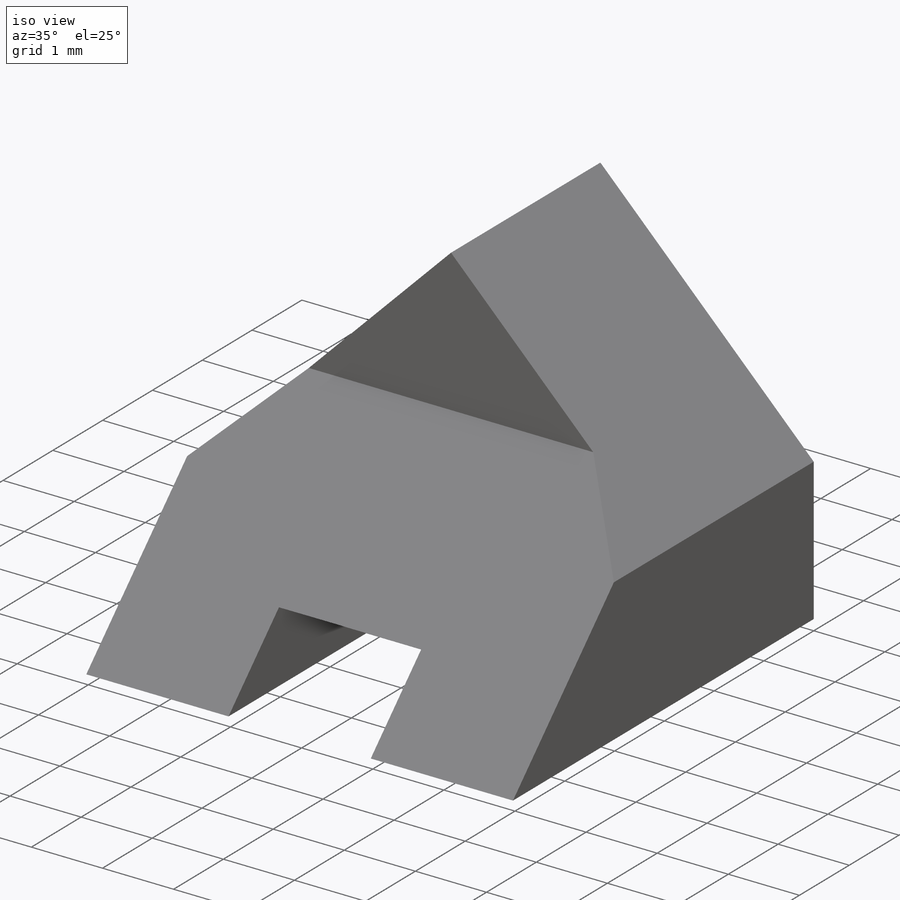
[diagram: iso view]
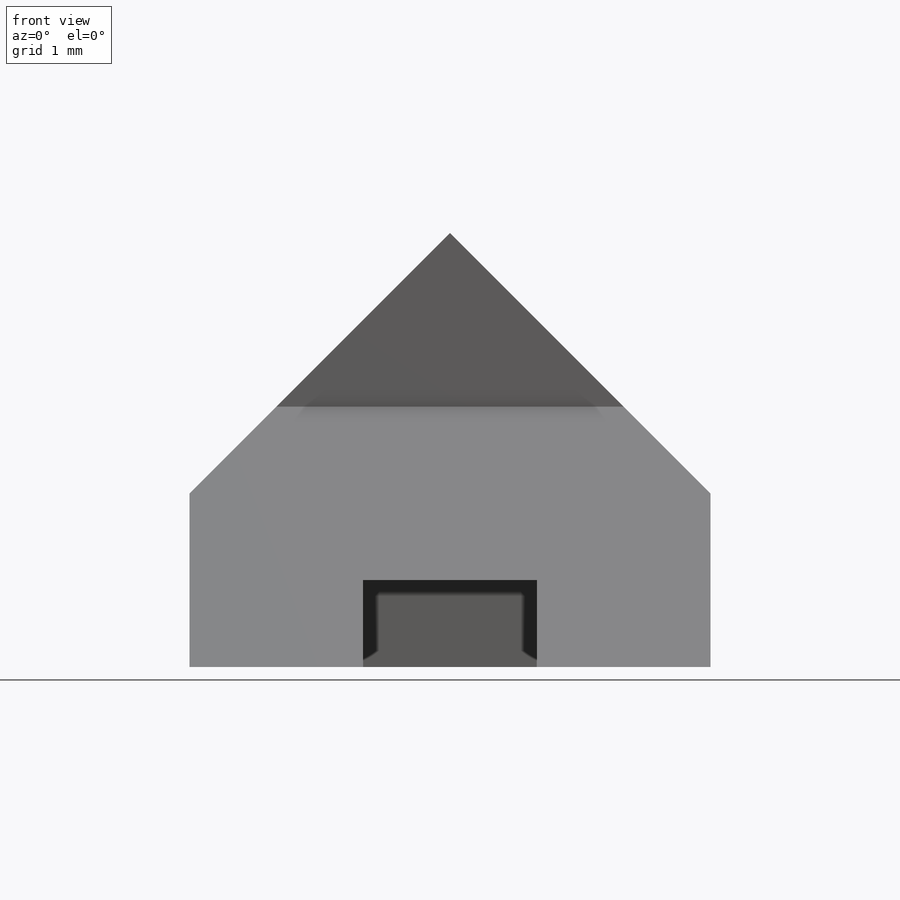
[diagram: front view]
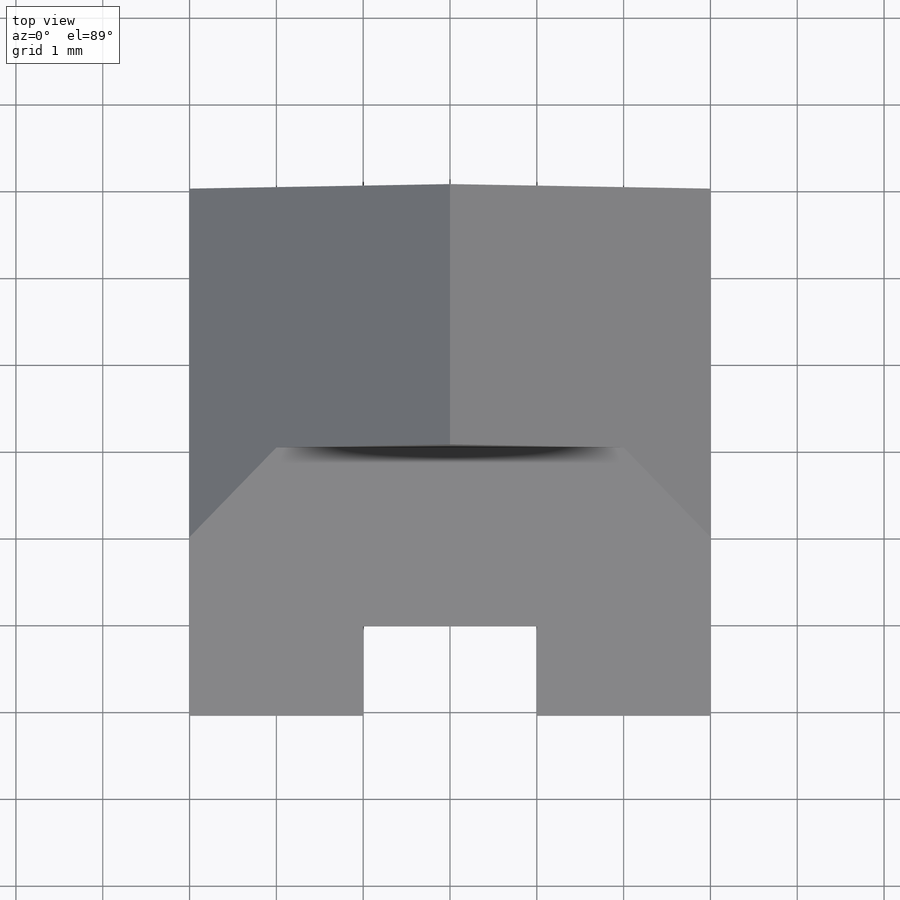
[diagram: top view]
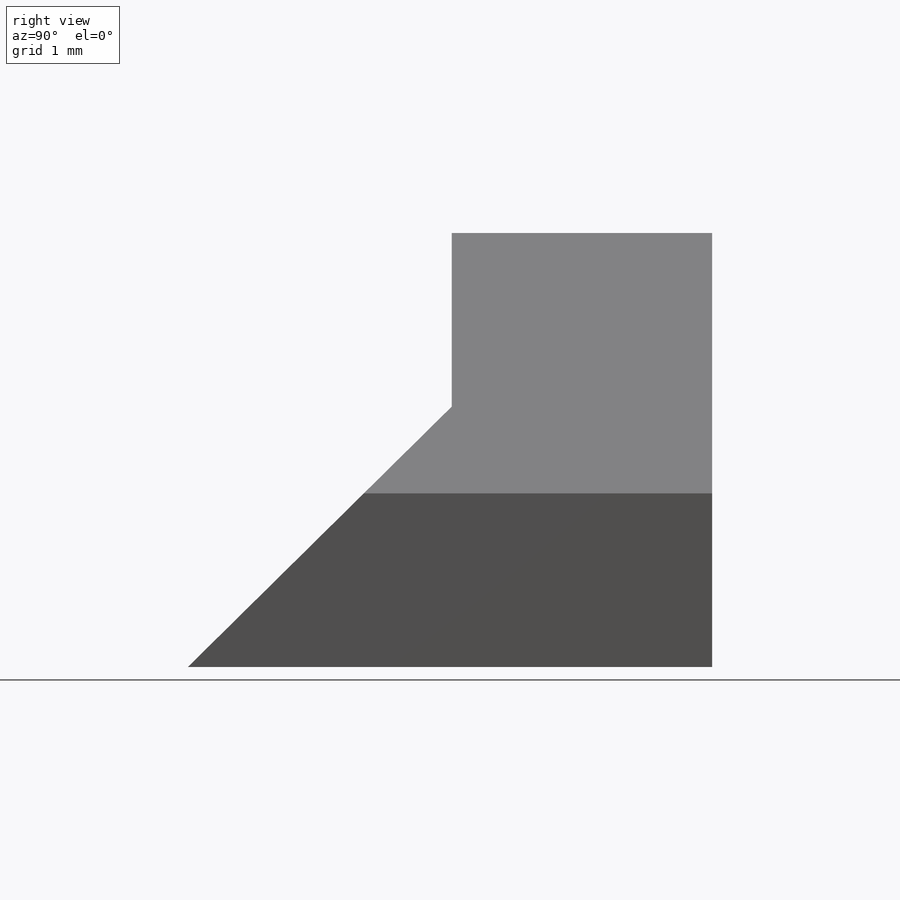
[diagram: right view]
SOLIDWORKS PART (.sldprt)
format: sldprt  version: not decoded by parser v0  size: 156,672 bytes
history: native  units: mm
features: sketch x3, extrude x2, material x1, cut_extrude x1 (+13 scaffold rows collapsed)
feature tree (20):
  scaffold x13  (default folders/planes/origin — collapsed)
  material  "Material <not specified>"
  sketch  "Sketch1"  dims[c1.D1=2.0mm c1.D2=2.0mm c1.D3=2.0mm c1.D4=2.0mm c2.D3=6.0mm c2.D4=6.0mm c3.D3=3.0mm c3.D4=6.0mm c3.D5=3.0mm c3.D6=3.0mm c3.D7=3.0mm]
  extrude  "Boss-Extrude1"  Depth=3mm
  sketch  "Sketch2"  dims[D1=2.0mm]
  extrude  "Boss-Extrude2"  Depth=6mm
  sketch  "Sketch3"  dims[D1=1.0mm D2=2.0mm D3=1.0mm]
  cut_extrude  "Cut-Extrude1"  Depth=6mm
decode coverage: 6 of 6 modeling features carry decoded parameters
note: suppression state not decoded; provenance and decode notes live in map.json
